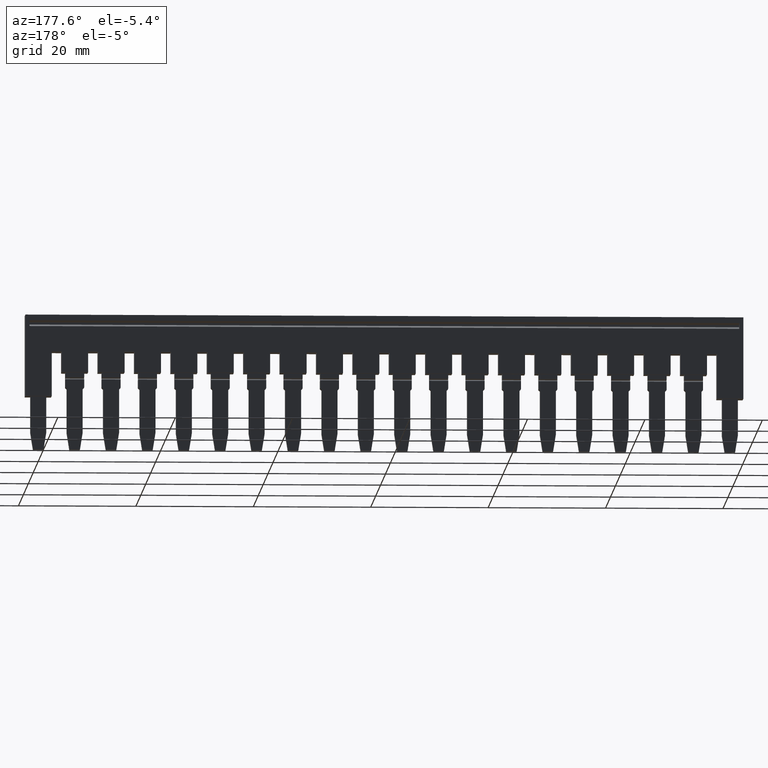
[diagram: clean part render]
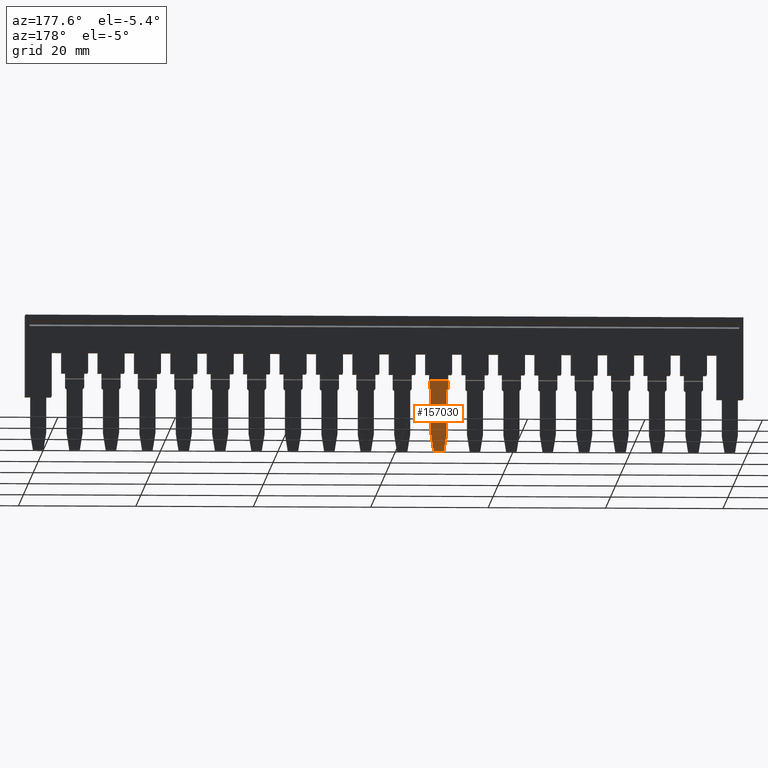
[diagram: same view with one face highlighted and labeled with its STEP entity id]
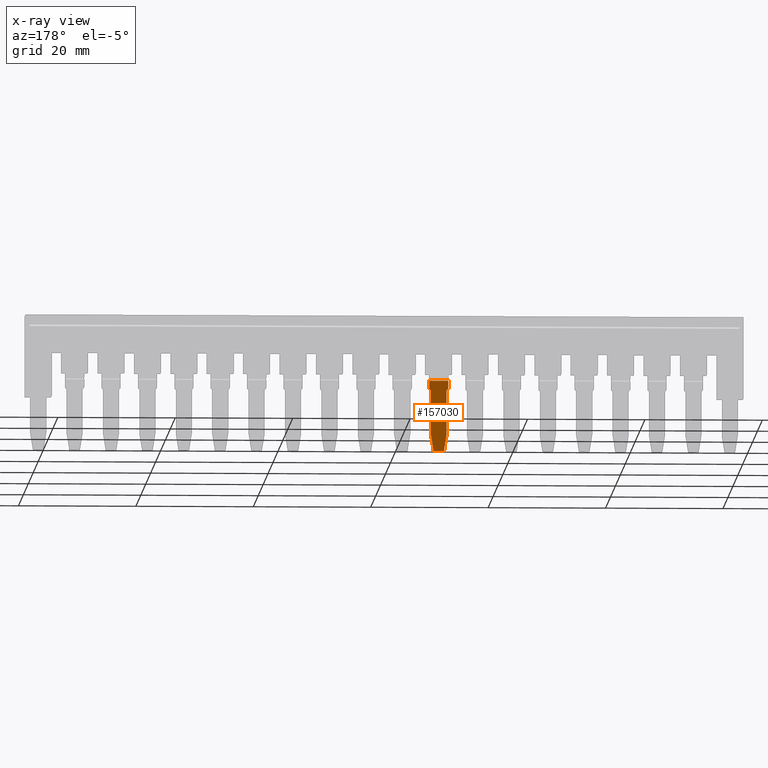
[diagram: x-ray of the same camera — body ghosted, the highlighted face saturated]
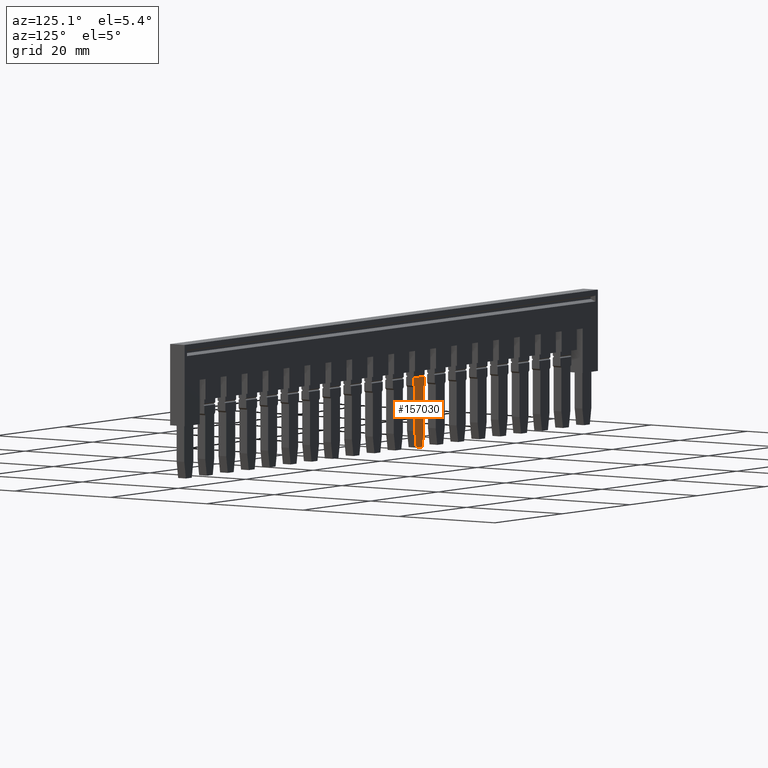
[diagram: same view with one face highlighted and labeled with its STEP entity id]
A machine part, auxiliary view. The second image highlights one B-rep face of the part: STEP entity #157030.
The next image is the same camera in x-ray: the body ghosted, the highlighted face saturated — about 0% of this face is hidden behind the body in this view.
A second angle (auxiliary view) of the same face is appended — the face is thin or edge-on in the first view.
In plain terms, the highlighted planar face has unit normal (0, -1, 0).
Its self-contained STEP definition (entity closure, byte-faithful):
#670=CARTESIAN_POINT('',(4.90716722167564,-20.1610705415477,
63.0599999999977));
#680=VERTEX_POINT('',#670);
#710=CARTESIAN_POINT('',(4.90716722167564,-20.1610705415477,
53.4202658398156));
#720=DIRECTION('',(2.22044604925031E-16,2.22044604925031E-16,1.));
#730=VECTOR('',#720,1.);
#740=LINE('',#710,#730);
#750=CARTESIAN_POINT('',(4.90716722167564,-20.1610705415477,
66.2600000000007));
#760=VERTEX_POINT('',#750);
#770=EDGE_CURVE('',#680,#760,#740,.T.);
#13490=CARTESIAN_POINT('',(4.90716722167564,-21.7849999990299,
66.0000000009623));
#13500=VERTEX_POINT('',#13490);
#13530=CARTESIAN_POINT('',(4.90716722167564,-14.7145836302052,
65.9999999999932));
#13540=DIRECTION('',(1.22464679914735E-16,1.,-2.83276944882399E-16));
#13550=VECTOR('',#13540,1.);
#13560=LINE('',#13530,#13550);
#13570=CARTESIAN_POINT('',(4.90716722167564,-29.2807420504982,
66.0000000009623));
#13580=VERTEX_POINT('',#13570);
#13590=EDGE_CURVE('',#13580,#13500,#13560,.T.);
#19030=CARTESIAN_POINT('',(4.90716722167561,48.2714705882353,
-115.025882352951));
#19040=DIRECTION('',(-1.,1.22464679914735E-16,2.22044604925031E-16));
#19050=DIRECTION('',(-1.22464679914735E-16,-1.,2.83276944882399E-16));
#19060=AXIS2_PLACEMENT_3D('',#19030,#19040,#19050);
#19070=PLANE('',#19060);
#64700=CARTESIAN_POINT('',(4.90716722167564,-32.1500000022896,
63.7831890519592));
#64710=VERTEX_POINT('',#64700);
#64760=CARTESIAN_POINT('',(4.90716722167564,-12.605123999998,
60.6280274188106));
#64770=DIRECTION('',(-7.56354038484899E-17,-0.987219178105449,
0.159368423411924));
#64780=VECTOR('',#64770,1.);
#64790=LINE('',#64760,#64780);
#64800=CARTESIAN_POINT('',(4.90716722167564,-29.2807420565067,
63.3200000000011));
#64810=VERTEX_POINT('',#64800);
#64820=EDGE_CURVE('',#64810,#64710,#64790,.T.);
#77530=CARTESIAN_POINT('',(4.90716722167564,-12.605123999998,
63.3200000000011));
#77540=DIRECTION('',(1.22464679914735E-16,1.,-1.60812264967663E-16));
#77550=VECTOR('',#77540,1.);
#77560=LINE('',#77530,#77550);
#77570=CARTESIAN_POINT('',(4.90716722167564,-21.7849999999935,
63.3200000000011));
#77580=VERTEX_POINT('',#77570);
#77590=EDGE_CURVE('',#64810,#77580,#77560,.T.);
#85650=CARTESIAN_POINT('',(4.90716722167564,-21.5249999999871,
63.0599999999928));
#85660=DIRECTION('',(7.04136402452342E-17,-0.707106781185369,
0.707106781187726));
#85670=VECTOR('',#85660,1.);
#85680=LINE('',#85650,#85670);
#85690=CARTESIAN_POINT('',(4.90716722167564,-21.5249999999924,
63.0599999999978));
#85700=VERTEX_POINT('',#85690);
#85710=EDGE_CURVE('',#85700,#77580,#85680,.T.);
#154020=CARTESIAN_POINT('',(4.90716722167564,-14.7145836302052,
66.2599999999962));
#154030=DIRECTION('',(1.22464679914749E-16,1.,7.66476658742563E-14));
#154040=VECTOR('',#154030,1.);
#154050=LINE('',#154020,#154040);
#154060=CARTESIAN_POINT('',(4.90716722167564,-21.5249999999924,
66.2600000000006));
#154070=VERTEX_POINT('',#154060);
#154080=EDGE_CURVE('',#154070,#760,#154050,.T.);
#155430=CARTESIAN_POINT('',(4.90716722167564,-14.7145836302052,
63.0599999999926));
#155440=DIRECTION('',(-1.22464679914731E-16,-1.,3.02008658189919E-14));
#155450=VECTOR('',#155440,1.);
#155460=LINE('',#155430,#155450);
#155470=EDGE_CURVE('',#680,#85700,#155460,.T.);
#156410=CARTESIAN_POINT('',(4.90716722167564,-32.1500000022893,
65.5368109480343));
#156420=VERTEX_POINT('',#156410);
#156450=CARTESIAN_POINT('',(4.90716722167564,-32.1500000022896,
63.6950159999974));
#156460=DIRECTION('',(-2.22044604925056E-16,-1.4518300079115E-13,-1.));
#156470=VECTOR('',#156460,1.);
#156480=LINE('',#156450,#156470);
#156490=EDGE_CURVE('',#156420,#64710,#156480,.T.);
#156700=CARTESIAN_POINT('',(4.90716722167564,-14.7145836302052,
68.3514390269599));
#156710=DIRECTION('',(1.52048416230384E-16,0.987219178105449,
0.159368423411924));
#156720=VECTOR('',#156710,1.);
#156730=LINE('',#156700,#156720);
#156740=EDGE_CURVE('',#156420,#13580,#156730,.T.);
#156860=CARTESIAN_POINT('',(4.90716722167564,-21.7849999999866,
65.9999999999939));
#156870=DIRECTION('',(2.43604851492225E-16,0.707106781183552,
0.707106781189543));
#156880=VECTOR('',#156870,1.);
#156890=LINE('',#156860,#156880);
#156900=EDGE_CURVE('',#13500,#154070,#156890,.T.);
#156910=ORIENTED_EDGE('',*,*,#156900,.F.);
#156920=ORIENTED_EDGE('',*,*,#154080,.F.);
#156930=ORIENTED_EDGE('',*,*,#770,.T.);
#156940=ORIENTED_EDGE('',*,*,#155470,.F.);
#156950=ORIENTED_EDGE('',*,*,#85710,.F.);
#156960=ORIENTED_EDGE('',*,*,#77590,.T.);
#156970=ORIENTED_EDGE('',*,*,#64820,.F.);
#156980=ORIENTED_EDGE('',*,*,#156490,.T.);
#156990=ORIENTED_EDGE('',*,*,#156740,.F.);
#157000=ORIENTED_EDGE('',*,*,#13590,.F.);
#157010=EDGE_LOOP('',(#157000,#156990,#156980,#156970,#156960,#156950,
#156940,#156930,#156920,#156910));
#157020=FACE_OUTER_BOUND('',#157010,.T.);
#157030=ADVANCED_FACE('',(#157020),#19070,.F.);